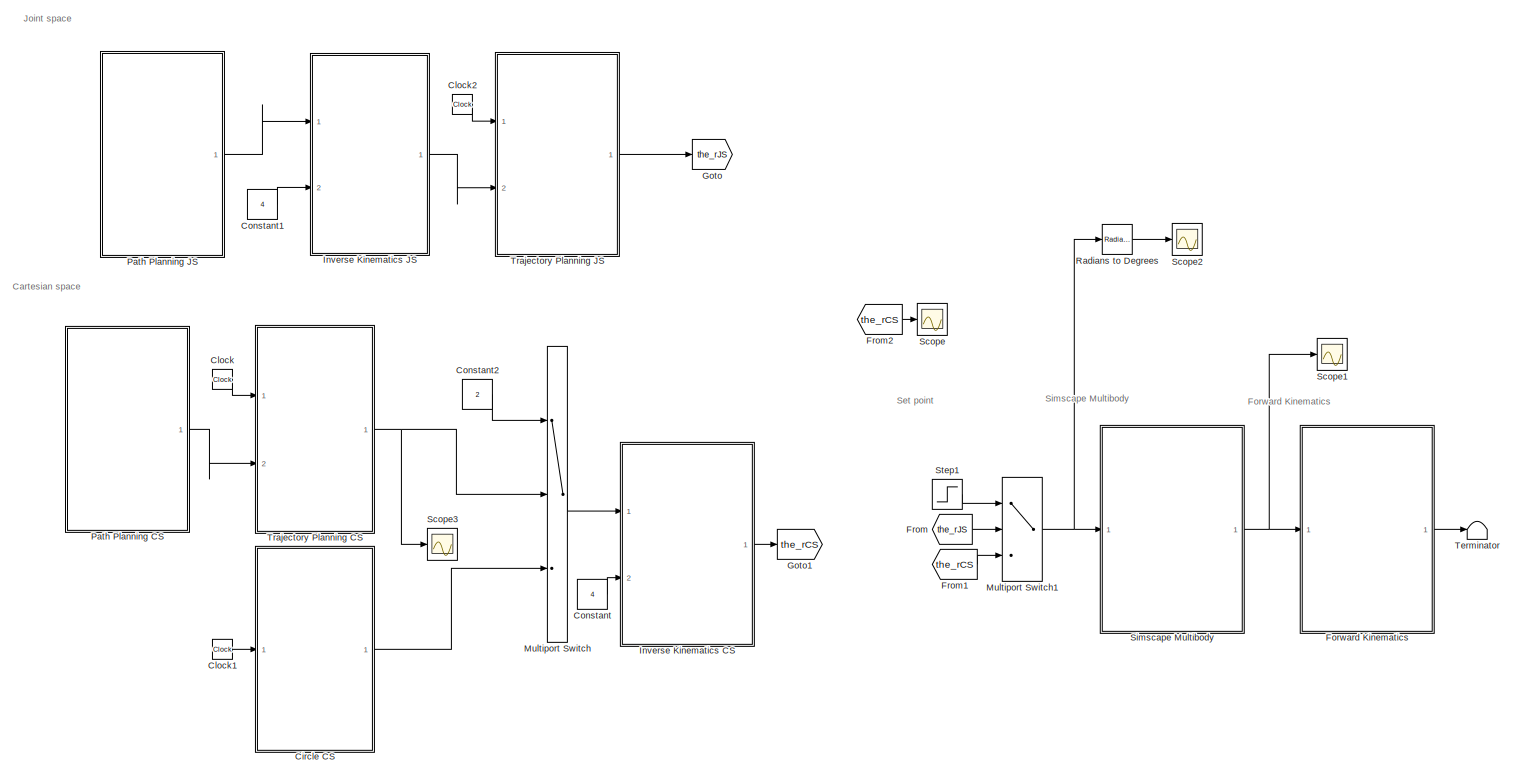
[diagram: root canvas - part 1/1, most of the canvas]
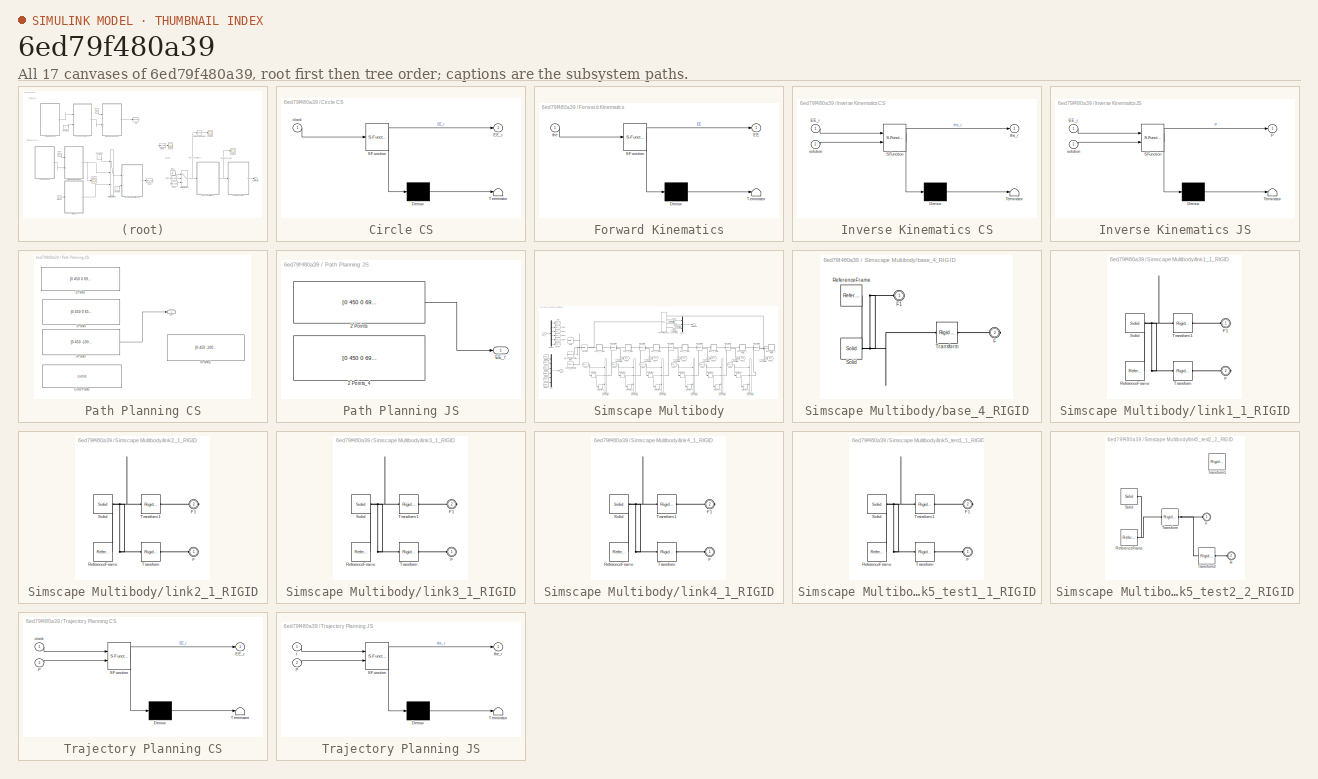
[diagram: thumbnail index - all 17 canvases of the model, root first then tree order]
MODEL slx_6ed79f480a39
KIND model
CONFIG AbsTol = auto
CONFIG EnableMultiTasking = off
CONFIG FixedStep = 0.01
CONFIG MaxStep = auto
CONFIG MinStep = auto
CONFIG RelTol = 1e-3
CONFIG SampleTimeConstraint = Unconstrained
CONFIG Solver = FixedStepAuto
CONFIG SolverName = FixedStepAuto
CONFIG StartTime = 0.0
CONFIG StopTime = 25
WORKSPACE source: external: MATLAB File  (data not in archive)
BLOCK [SubSystem] Circle CS
  ErrorFcn = Stateflow.Translate.translate
  PermitHierarchicalResolution = ExplicitOnly
  Ports = [1, 1]
  RequestExecContextInheritance = off
  SFBlockType = MATLAB Function
  TreatAsAtomicUnit = on
BLOCK [Demux] Circle CS/ Demux 
  Outputs = 1
  Ports = [1, 1]
BLOCK [S-Function] Circle CS/ SFunction 
  EnableBusSupport = on
  FunctionName = sf_sfun
  PortCounts = [1 2]
  Ports = [1, 2]
  SFcnIsStateOwnerBlock = off
  SFunctionDeploymentMode = off
  Tag = Stateflow S-Function CARTESIAN_SPACE 4
BLOCK [Terminator] Circle CS/ Terminator 
BLOCK [Outport] Circle CS/EE_r
  IconDisplay = Port number
BLOCK [Inport] Circle CS/clock
  IconDisplay = Port number
BLOCK [Clock] Clock
BLOCK [Clock] Clock1
BLOCK [Clock] Clock2
BLOCK [Constant] Constant
  Value = 4
BLOCK [Constant] Constant1
  Value = 4
BLOCK [Constant] Constant2
  Value = 2
BLOCK [SubSystem] Forward Kinematics
  ErrorFcn = Stateflow.Translate.translate
  PermitHierarchicalResolution = ExplicitOnly
  Ports = [1, 1]
  RequestExecContextInheritance = off
  SFBlockType = MATLAB Function
  TreatAsAtomicUnit = on
BLOCK [Demux] Forward Kinematics/ Demux 
  Outputs = 1
  Ports = [1, 1]
BLOCK [S-Function] Forward Kinematics/ SFunction 
  EnableBusSupport = on
  FunctionName = sf_sfun
  PortCounts = [1 2]
  Ports = [1, 2]
  SFcnIsStateOwnerBlock = off
  SFunctionDeploymentMode = off
  Tag = Stateflow S-Function CARTESIAN_SPACE 2
BLOCK [Terminator] Forward Kinematics/ Terminator 
BLOCK [Outport] Forward Kinematics/EE
  IconDisplay = Port number
BLOCK [Inport] Forward Kinematics/the
  IconDisplay = Port number
BLOCK [From] From
  GotoTag = the_rJS
BLOCK [From] From1
  GotoTag = the_rCS
BLOCK [From] From2
  GotoTag = the_rCS
BLOCK [Goto] Goto
  GotoTag = the_rJS
BLOCK [Goto] Goto1
  GotoTag = the_rCS
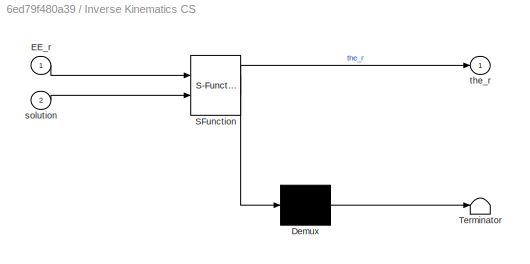
BLOCK [SubSystem] Inverse Kinematics CS
  ErrorFcn = Stateflow.Translate.translate
  PermitHierarchicalResolution = ExplicitOnly
  Ports = [2, 1]
  RequestExecContextInheritance = off
  SFBlockType = MATLAB Function
  TreatAsAtomicUnit = on
BLOCK [Demux] Inverse Kinematics CS/ Demux 
  Outputs = 1
  Ports = [1, 1]
BLOCK [S-Function] Inverse Kinematics CS/ SFunction 
  EnableBusSupport = on
  FunctionName = sf_sfun
  PortCounts = [2 2]
  Ports = [2, 2]
  SFcnIsStateOwnerBlock = off
  SFunctionDeploymentMode = off
  Tag = Stateflow S-Function CARTESIAN_SPACE 1
BLOCK [Terminator] Inverse Kinematics CS/ Terminator 
BLOCK [Inport] Inverse Kinematics CS/EE_r
  IconDisplay = Port number
BLOCK [Inport] Inverse Kinematics CS/solution
  IconDisplay = Port number
  Port = 2
BLOCK [Outport] Inverse Kinematics CS/the_r
  IconDisplay = Port number
BLOCK [SubSystem] Inverse Kinematics JS
  ErrorFcn = Stateflow.Translate.translate
  PermitHierarchicalResolution = ExplicitOnly
  Ports = [2, 1]
  RequestExecContextInheritance = off
  SFBlockType = MATLAB Function
  TreatAsAtomicUnit = on
BLOCK [Demux] Inverse Kinematics JS/ Demux 
  Outputs = 1
  Ports = [1, 1]
BLOCK [S-Function] Inverse Kinematics JS/ SFunction 
  EnableBusSupport = on
  FunctionName = sf_sfun
  PortCounts = [2 2]
  Ports = [2, 2]
  SFcnIsStateOwnerBlock = off
  SFunctionDeploymentMode = off
  Tag = Stateflow S-Function CARTESIAN_SPACE 7
BLOCK [Terminator] Inverse Kinematics JS/ Terminator 
BLOCK [Inport] Inverse Kinematics JS/EE_r
  IconDisplay = Port number
BLOCK [Outport] Inverse Kinematics JS/P
  IconDisplay = Port number
BLOCK [Inport] Inverse Kinematics JS/solution
  IconDisplay = Port number
  Port = 2
BLOCK [MultiPortSwitch] Multiport Switch
  InputSameDT = off
  Inputs = 2
  Ports = [3, 1]
  SaturateOnIntegerOverflow = off
BLOCK [MultiPortSwitch] Multiport Switch1
  InputSameDT = off
  Inputs = 2
  Ports = [3, 1]
  SaturateOnIntegerOverflow = off
BLOCK [SubSystem] Path Planning CS
  Ports = [0, 1]
  RequestExecContextInheritance = off
BLOCK [Constant] Path Planning CS/2 Points
  Commented = on
  Value = [0 450 0 695 0 -pi/2 pi; 5 450 0 650 0 -pi/2 pi]
BLOCK [Constant] Path Planning CS/3 Points
  Commented = on
  Value = [0 450 0 650 0 -pi/2 pi;0+5 450 0 650 0 -pi/2 pi; 5+5 450 -100 550 0 -pi/2 pi; 10+5 450 100 550 0 -pi/2 pi; 15+5 450 0 650 0 -pi/2 pi]
BLOCK [Constant] Path Planning CS/4 Points
  Value = [0 450 -100 650 0 -pi/2 pi;0+5 450 -100 650 0 -pi/2 pi; 5+5 450 100 650 0 -pi/2 pi; 10+5 450 100 550 0 -pi/2 pi; 15+5 450 -100 550 0 -pi/2 pi;20+5 450 -100 650 0 -pi/2 pi]
BLOCK [Constant] Path Planning CS/4 Points1
  Commented = on
  Value = [0 450 -100 650 0 0 0; 10/4 450 100 650 0 0 0; 20/4 450 100 500 0 0 0; 30/4 450 -100 500 0 0 0;40/4 450 -100 650 0 0 0]
BLOCK [Constant] Path Planning CS/Circle Points
  Commented = on
  Value = circle
BLOCK [Outport] Path Planning CS/P
  IconDisplay = Port number
BLOCK [SubSystem] Path Planning JS
  Ports = [0, 1]
  RequestExecContextInheritance = off
BLOCK [Constant] Path Planning JS/2 Points
  Value = [0 450 0 695 0 -pi/2 0; 5 450 0 650 0 -pi/2 pi]
BLOCK [Constant] Path Planning JS/2 Points_4
  Commented = on
  Value = [0 450 0 695 0 -pi/2 0; 5 450 -100 650 0 -pi/2 pi]
BLOCK [Outport] Path Planning JS/EE_r
  IconDisplay = Port number
BLOCK [Reference] Radians to Degrees  REF=simulink_extras/Transformations/Radians
to Degrees
  Ports = [1, 1]
  SourceBlock = simulink_extras/Transformations/Radians\nto Degrees
  SourceProductBaseCode = SL
  SourceProductName = Simulink
  SourceType = RadiansToDegrees
BLOCK [Scope] Scope
  Floating = off
  NumInputPorts = 1
  Ports = [1]
  ScopeSpecificationString = Simulink.scopes.TimeScopeBlockCfg('CurrentConfiguration', extmgr.ConfigurationSet(extmgr.Configuration('Core','General UI',true),extmgr.Configuration('Core','Source UI',true),extmgr.Configuration('Sources','WiredSimulink',true,'DataLoggingVariableName','ScopeData2'),extmgr.Configuration('Visuals','Time Domain',true,'SerializedDisplays',{struct('MinYLimReal','-1.00897','MaxYLimReal','0.90679','YLab...<+1458ch>
BLOCK [Scope] Scope1
  Floating = off
  NumInputPorts = 1
  Ports = [1]
  ScopeSpecificationString = Simulink.scopes.TimeScopeBlockCfg('CurrentConfiguration', extmgr.ConfigurationSet(extmgr.Configuration('Core','General UI',true),extmgr.Configuration('Core','Source UI',true),extmgr.Configuration('Sources','WiredSimulink',true,'DataLoggingVariableName','ScopeData1'),extmgr.Configuration('Visuals','Time Domain',true,'SerializedDisplays',{struct('MinYLimReal','-1.00897','MaxYLimReal','0.90679','YLab...<+1542ch>
BLOCK [Scope] Scope2
  Floating = off
  NumInputPorts = 1
  Ports = [1]
  ScopeSpecificationString = Simulink.scopes.TimeScopeBlockCfg('CurrentConfiguration', extmgr.ConfigurationSet(extmgr.Configuration('Core','General UI',true),extmgr.Configuration('Core','Source UI',true),extmgr.Configuration('Sources','WiredSimulink',true,'DataLoggingVariableName','the','DataLogging',true,'DataLoggingSaveFormat','StructureWithTime'),extmgr.Configuration('Visuals','Time Domain',true,'SerializedDisplays',{struc...<+1583ch>
BLOCK [Scope] Scope3
  Floating = off
  NumInputPorts = 1
  Ports = [1]
  ScopeSpecificationString = Simulink.scopes.TimeScopeBlockCfg('CurrentConfiguration', extmgr.ConfigurationSet(extmgr.Configuration('Core','General UI',true),extmgr.Configuration('Core','Source UI',true),extmgr.Configuration('Sources','WiredSimulink',true,'DataLoggingVariableName','ScopeData3'),extmgr.Configuration('Visuals','Time Domain',true,'SerializedDisplays',{struct('MinYLimReal','-193.75','MaxYLimReal','743.75','YLabel...<+1544ch>
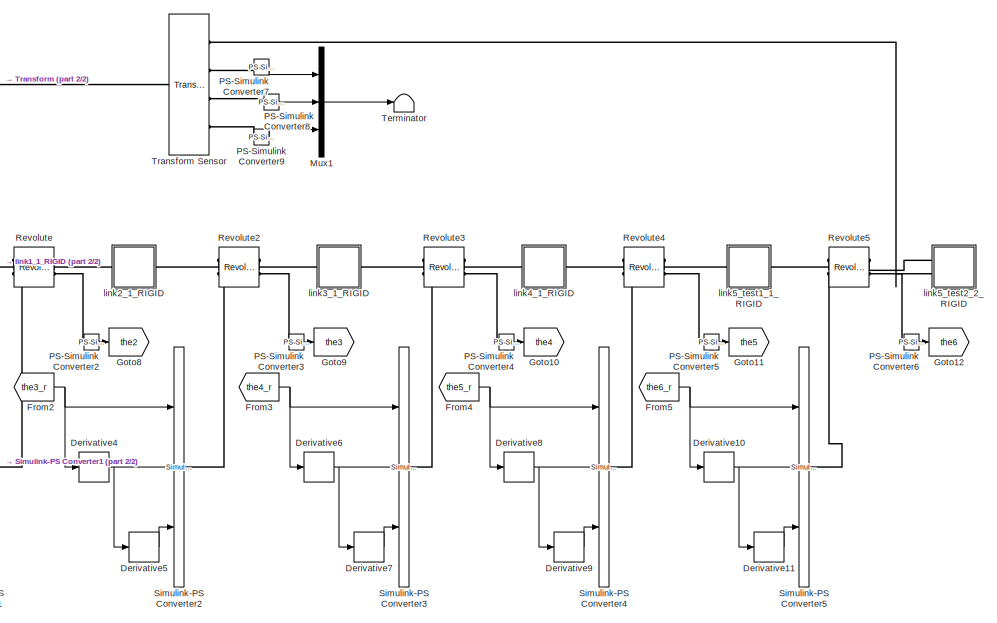
[diagram: Simscape Multibody - part 1/2, right side, full height]
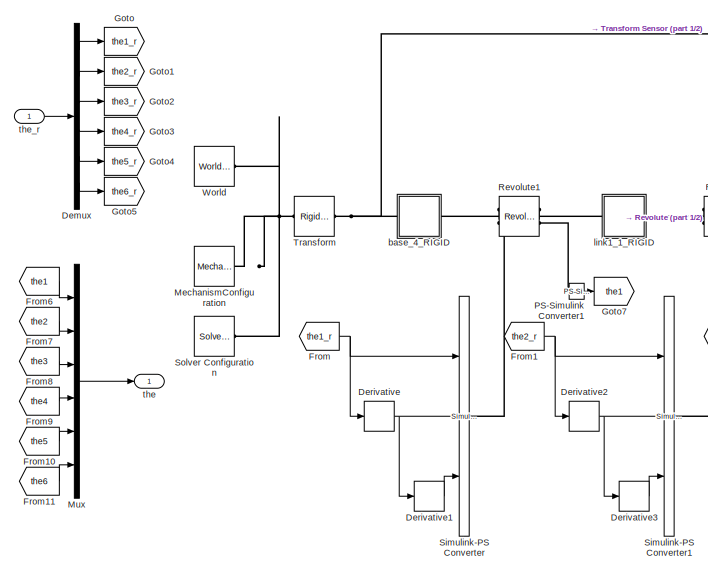
[diagram: Simscape Multibody - part 2/2, left side, full height]
BLOCK [SubSystem] Simscape Multibody
  Ports = [1, 1]
  RequestExecContextInheritance = off
BLOCK [Demux] Simscape Multibody/Demux
  DisplayOption = bar
  Outputs = 6
  Ports = [1, 6]
BLOCK [Derivative] Simscape Multibody/Derivative
BLOCK [Derivative] Simscape Multibody/Derivative1
BLOCK [Derivative] Simscape Multibody/Derivative10
BLOCK [Derivative] Simscape Multibody/Derivative11
BLOCK [Derivative] Simscape Multibody/Derivative2
BLOCK [Derivative] Simscape Multibody/Derivative3
BLOCK [Derivative] Simscape Multibody/Derivative4
BLOCK [Derivative] Simscape Multibody/Derivative5
BLOCK [Derivative] Simscape Multibody/Derivative6
BLOCK [Derivative] Simscape Multibody/Derivative7
BLOCK [Derivative] Simscape Multibody/Derivative8
BLOCK [Derivative] Simscape Multibody/Derivative9
BLOCK [From] Simscape Multibody/From
  GotoTag = the1_r
BLOCK [From] Simscape Multibody/From1
  GotoTag = the2_r
BLOCK [From] Simscape Multibody/From10
  GotoTag = the5
BLOCK [From] Simscape Multibody/From11
  GotoTag = the6
BLOCK [From] Simscape Multibody/From2
  GotoTag = the3_r
BLOCK [From] Simscape Multibody/From3
  GotoTag = the4_r
BLOCK [From] Simscape Multibody/From4
  GotoTag = the5_r
BLOCK [From] Simscape Multibody/From5
  GotoTag = the6_r
BLOCK [From] Simscape Multibody/From6
  GotoTag = the1
BLOCK [From] Simscape Multibody/From7
  GotoTag = the2
BLOCK [From] Simscape Multibody/From8
  GotoTag = the3
BLOCK [From] Simscape Multibody/From9
  GotoTag = the4
BLOCK [Goto] Simscape Multibody/Goto
  GotoTag = the1_r
BLOCK [Goto] Simscape Multibody/Goto1
  GotoTag = the2_r
BLOCK [Goto] Simscape Multibody/Goto10
  GotoTag = the4
BLOCK [Goto] Simscape Multibody/Goto11
  GotoTag = the5
BLOCK [Goto] Simscape Multibody/Goto12
  GotoTag = the6
BLOCK [Goto] Simscape Multibody/Goto2
  GotoTag = the3_r
BLOCK [Goto] Simscape Multibody/Goto3
  GotoTag = the4_r
BLOCK [Goto] Simscape Multibody/Goto4
  GotoTag = the5_r
BLOCK [Goto] Simscape Multibody/Goto5
  GotoTag = the6_r
BLOCK [Goto] Simscape Multibody/Goto7
  GotoTag = the1
BLOCK [Goto] Simscape Multibody/Goto8
  GotoTag = the2
BLOCK [Goto] Simscape Multibody/Goto9
  GotoTag = the3
BLOCK [Reference] Simscape Multibody/MechanismConfiguration  REF=sm_lib/Utilities/Mechanism
Configuration
  Ports = [0, 0, 0, 0, 0, 0, 1]
  SourceBlock = sm_lib/Utilities/Mechanism\nConfiguration
  SourceProductBaseCode = MS
  SourceProductName = Simscape Multibody
  SourceType = Mechanism\nConfiguration
BLOCK [Mux] Simscape Multibody/Mux
  DisplayOption = bar
  Inputs = 6
  Ports = [6, 1]
BLOCK [Mux] Simscape Multibody/Mux1
  DisplayOption = bar
  Inputs = 3
  Ports = [3, 1]
BLOCK [Reference] Simscape Multibody/PS-Simulink Converter1  REF=nesl_utility/PS-Simulink
Converter
  Ports = [0, 1, 0, 0, 0, 1]
  SourceBlock = nesl_utility/PS-Simulink\nConverter
  SourceProductBaseCode = SS
  SourceProductName = Simscape
  SourceType = PS-Simulink\nConverter
BLOCK [Reference] Simscape Multibody/PS-Simulink Converter2  REF=nesl_utility/PS-Simulink
Converter
  Ports = [0, 1, 0, 0, 0, 1]
  SourceBlock = nesl_utility/PS-Simulink\nConverter
  SourceProductBaseCode = SS
  SourceProductName = Simscape
  SourceType = PS-Simulink\nConverter
BLOCK [Reference] Simscape Multibody/PS-Simulink Converter3  REF=nesl_utility/PS-Simulink
Converter
  Ports = [0, 1, 0, 0, 0, 1]
  SourceBlock = nesl_utility/PS-Simulink\nConverter
  SourceProductBaseCode = SS
  SourceProductName = Simscape
  SourceType = PS-Simulink\nConverter
BLOCK [Reference] Simscape Multibody/PS-Simulink Converter4  REF=nesl_utility/PS-Simulink
Converter
  Ports = [0, 1, 0, 0, 0, 1]
  SourceBlock = nesl_utility/PS-Simulink\nConverter
  SourceProductBaseCode = SS
  SourceProductName = Simscape
  SourceType = PS-Simulink\nConverter
BLOCK [Reference] Simscape Multibody/PS-Simulink Converter5  REF=nesl_utility/PS-Simulink
Converter
  Ports = [0, 1, 0, 0, 0, 1]
  SourceBlock = nesl_utility/PS-Simulink\nConverter
  SourceProductBaseCode = SS
  SourceProductName = Simscape
  SourceType = PS-Simulink\nConverter
BLOCK [Reference] Simscape Multibody/PS-Simulink Converter6  REF=nesl_utility/PS-Simulink
Converter
  Ports = [0, 1, 0, 0, 0, 1]
  SourceBlock = nesl_utility/PS-Simulink\nConverter
  SourceProductBaseCode = SS
  SourceProductName = Simscape
  SourceType = PS-Simulink\nConverter
BLOCK [Reference] Simscape Multibody/PS-Simulink Converter7  REF=nesl_utility/PS-Simulink
Converter
  Ports = [0, 1, 0, 0, 0, 1]
  SourceBlock = nesl_utility/PS-Simulink\nConverter
  SourceProductBaseCode = SS
  SourceProductName = Simscape
  SourceType = PS-Simulink\nConverter
BLOCK [Reference] Simscape Multibody/PS-Simulink Converter8  REF=nesl_utility/PS-Simulink
Converter
  Ports = [0, 1, 0, 0, 0, 1]
  SourceBlock = nesl_utility/PS-Simulink\nConverter
  SourceProductBaseCode = SS
  SourceProductName = Simscape
  SourceType = PS-Simulink\nConverter
BLOCK [Reference] Simscape Multibody/PS-Simulink Converter9  REF=nesl_utility/PS-Simulink
Converter
  Ports = [0, 1, 0, 0, 0, 1]
  SourceBlock = nesl_utility/PS-Simulink\nConverter
  SourceProductBaseCode = SS
  SourceProductName = Simscape
  SourceType = PS-Simulink\nConverter
BLOCK [Reference] Simscape Multibody/Revolute  REF=sm_lib/Joints/Revolute Joint
  Ports = [0, 0, 0, 0, 0, 2, 2]
  SourceBlock = sm_lib/Joints/Revolute Joint
  SourceProductBaseCode = MS
  SourceProductName = Simscape Multibody
  SourceType = Revolute Joint
BLOCK [Reference] Simscape Multibody/Revolute1  REF=sm_lib/Joints/Revolute Joint
  Ports = [0, 0, 0, 0, 0, 2, 2]
  SourceBlock = sm_lib/Joints/Revolute Joint
  SourceProductBaseCode = MS
  SourceProductName = Simscape Multibody
  SourceType = Revolute Joint
BLOCK [Reference] Simscape Multibody/Revolute2  REF=sm_lib/Joints/Revolute Joint
  Ports = [0, 0, 0, 0, 0, 2, 2]
  SourceBlock = sm_lib/Joints/Revolute Joint
  SourceProductBaseCode = MS
  SourceProductName = Simscape Multibody
  SourceType = Revolute Joint
BLOCK [Reference] Simscape Multibody/Revolute3  REF=sm_lib/Joints/Revolute Joint
  Ports = [0, 0, 0, 0, 0, 2, 2]
  SourceBlock = sm_lib/Joints/Revolute Joint
  SourceProductBaseCode = MS
  SourceProductName = Simscape Multibody
  SourceType = Revolute Joint
BLOCK [Reference] Simscape Multibody/Revolute4  REF=sm_lib/Joints/Revolute Joint
  Ports = [0, 0, 0, 0, 0, 2, 2]
  SourceBlock = sm_lib/Joints/Revolute Joint
  SourceProductBaseCode = MS
  SourceProductName = Simscape Multibody
  SourceType = Revolute Joint
BLOCK [Reference] Simscape Multibody/Revolute5  REF=sm_lib/Joints/Revolute Joint
  Ports = [0, 0, 0, 0, 0, 2, 2]
  SourceBlock = sm_lib/Joints/Revolute Joint
  SourceProductBaseCode = MS
  SourceProductName = Simscape Multibody
  SourceType = Revolute Joint
BLOCK [Reference] Simscape Multibody/Simulink-PS Converter  REF=nesl_utility/Simulink-PS
Converter
  Ports = [3, 0, 0, 0, 0, 0, 1]
  SourceBlock = nesl_utility/Simulink-PS\nConverter
  SourceProductBaseCode = SS
  SourceProductName = Simscape
  SourceType = Simulink-PS\nConverter
BLOCK [Reference] Simscape Multibody/Simulink-PS Converter1  REF=nesl_utility/Simulink-PS
Converter
  Ports = [3, 0, 0, 0, 0, 0, 1]
  SourceBlock = nesl_utility/Simulink-PS\nConverter
  SourceProductBaseCode = SS
  SourceProductName = Simscape
  SourceType = Simulink-PS\nConverter
BLOCK [Reference] Simscape Multibody/Simulink-PS Converter2  REF=nesl_utility/Simulink-PS
Converter
  Ports = [3, 0, 0, 0, 0, 0, 1]
  SourceBlock = nesl_utility/Simulink-PS\nConverter
  SourceProductBaseCode = SS
  SourceProductName = Simscape
  SourceType = Simulink-PS\nConverter
BLOCK [Reference] Simscape Multibody/Simulink-PS Converter3  REF=nesl_utility/Simulink-PS
Converter
  Ports = [3, 0, 0, 0, 0, 0, 1]
  SourceBlock = nesl_utility/Simulink-PS\nConverter
  SourceProductBaseCode = SS
  SourceProductName = Simscape
  SourceType = Simulink-PS\nConverter
BLOCK [Reference] Simscape Multibody/Simulink-PS Converter4  REF=nesl_utility/Simulink-PS
Converter
  Ports = [3, 0, 0, 0, 0, 0, 1]
  SourceBlock = nesl_utility/Simulink-PS\nConverter
  SourceProductBaseCode = SS
  SourceProductName = Simscape
  SourceType = Simulink-PS\nConverter
BLOCK [Reference] Simscape Multibody/Simulink-PS Converter5  REF=nesl_utility/Simulink-PS
Converter
  Ports = [3, 0, 0, 0, 0, 0, 1]
  SourceBlock = nesl_utility/Simulink-PS\nConverter
  SourceProductBaseCode = SS
  SourceProductName = Simscape
  SourceType = Simulink-PS\nConverter
BLOCK [Reference] Simscape Multibody/Solver Configuration  REF=nesl_utility/Solver
Configuration
  Ports = [0, 0, 0, 0, 0, 0, 1]
  SourceBlock = nesl_utility/Solver\nConfiguration
  SourceProductBaseCode = SS
  SourceProductName = Simscape
  SourceType = Solver\nConfiguration
BLOCK [Terminator] Simscape Multibody/Terminator
BLOCK [Reference] Simscape Multibody/Transform  REF=sm_lib/Frames and
Transforms/Rigid
Transform
  Ports = [0, 0, 0, 0, 0, 1, 1]
  SourceBlock = sm_lib/Frames and\nTransforms/Rigid\nTransform
  SourceProductBaseCode = MS
  SourceProductName = Simscape Multibody
  SourceType = Rigid\nTransform
BLOCK [Reference] Simscape Multibody/Transform Sensor  REF=sm_lib/Frames and
Transforms/Transform
Sensor
  Ports = [0, 0, 0, 0, 0, 1, 4]
  SourceBlock = sm_lib/Frames and\nTransforms/Transform\nSensor
  SourceProductBaseCode = MS
  SourceProductName = Simscape Multibody
  SourceType = Transform\nSensor
BLOCK [Reference] Simscape Multibody/World  REF=sm_lib/Frames and
Transforms/World Frame
  Ports = [0, 0, 0, 0, 0, 0, 1]
  SourceBlock = sm_lib/Frames and\nTransforms/World Frame
  SourceProductBaseCode = MS
  SourceProductName = Simscape Multibody
  SourceType = World Frame
BLOCK [SubSystem] Simscape Multibody/base_4_RIGID
  Ports = [0, 0, 0, 0, 0, 1, 1]
  RequestExecContextInheritance = off
BLOCK [PMIOPort] Simscape Multibody/base_4_RIGID/F
  Port = 2
  Side = Right
BLOCK [PMIOPort] Simscape Multibody/base_4_RIGID/F1
  Side = Left
BLOCK [Reference] Simscape Multibody/base_4_RIGID/ReferenceFrame  REF=sm_lib/Frames and
Transforms/Reference
Frame
  Ports = [0, 0, 0, 0, 0, 0, 1]
  SourceBlock = sm_lib/Frames and\nTransforms/Reference\nFrame
  SourceProductBaseCode = MS
  SourceProductName = Simscape Multibody
  SourceType = Reference\nFrame
BLOCK [Reference] Simscape Multibody/base_4_RIGID/Solid  REF=sm_lib/Body Elements/Solid
  Ports = [0, 0, 0, 0, 0, 0, 1]
  SourceBlock = sm_lib/Body Elements/Solid
  SourceProductBaseCode = MS
  SourceProductName = Simscape Multibody
  SourceType = Solid
BLOCK [Reference] Simscape Multibody/base_4_RIGID/Transform  REF=sm_lib/Frames and
Transforms/Rigid
Transform
  Ports = [0, 0, 0, 0, 0, 1, 1]
  SourceBlock = sm_lib/Frames and\nTransforms/Rigid\nTransform
  SourceProductBaseCode = MS
  SourceProductName = Simscape Multibody
  SourceType = Rigid\nTransform
BLOCK [SubSystem] Simscape Multibody/link1_1_RIGID
  Ports = [0, 0, 0, 0, 0, 1, 1]
  RequestExecContextInheritance = off
BLOCK [PMIOPort] Simscape Multibody/link1_1_RIGID/F
  Port = 2
  Side = Right
BLOCK [PMIOPort] Simscape Multibody/link1_1_RIGID/F1
  Side = Left
BLOCK [Reference] Simscape Multibody/link1_1_RIGID/ReferenceFrame  REF=sm_lib/Frames and
Transforms/Reference
Frame
  Ports = [0, 0, 0, 0, 0, 0, 1]
  SourceBlock = sm_lib/Frames and\nTransforms/Reference\nFrame
  SourceProductBaseCode = MS
  SourceProductName = Simscape Multibody
  SourceType = Reference\nFrame
BLOCK [Reference] Simscape Multibody/link1_1_RIGID/Solid  REF=sm_lib/Body Elements/Solid
  Ports = [0, 0, 0, 0, 0, 0, 1]
  SourceBlock = sm_lib/Body Elements/Solid
  SourceProductBaseCode = MS
  SourceProductName = Simscape Multibody
  SourceType = Solid
BLOCK [Reference] Simscape Multibody/link1_1_RIGID/Transform  REF=sm_lib/Frames and
Transforms/Rigid
Transform
  Ports = [0, 0, 0, 0, 0, 1, 1]
  SourceBlock = sm_lib/Frames and\nTransforms/Rigid\nTransform
  SourceProductBaseCode = MS
  SourceProductName = Simscape Multibody
  SourceType = Rigid\nTransform
BLOCK [Reference] Simscape Multibody/link1_1_RIGID/Transform1  REF=sm_lib/Frames and
Transforms/Rigid
Transform
  Ports = [0, 0, 0, 0, 0, 1, 1]
  SourceBlock = sm_lib/Frames and\nTransforms/Rigid\nTransform
  SourceProductBaseCode = MS
  SourceProductName = Simscape Multibody
  SourceType = Rigid\nTransform
BLOCK [SubSystem] Simscape Multibody/link2_1_RIGID
  Ports = [0, 0, 0, 0, 0, 1, 1]
  RequestExecContextInheritance = off
BLOCK [PMIOPort] Simscape Multibody/link2_1_RIGID/F
  Side = Left
BLOCK [PMIOPort] Simscape Multibody/link2_1_RIGID/F1
  Port = 2
  Side = Right
BLOCK [Reference] Simscape Multibody/link2_1_RIGID/ReferenceFrame  REF=sm_lib/Frames and
Transforms/Reference
Frame
  Ports = [0, 0, 0, 0, 0, 0, 1]
  SourceBlock = sm_lib/Frames and\nTransforms/Reference\nFrame
  SourceProductBaseCode = MS
  SourceProductName = Simscape Multibody
  SourceType = Reference\nFrame
BLOCK [Reference] Simscape Multibody/link2_1_RIGID/Solid  REF=sm_lib/Body Elements/Solid
  Ports = [0, 0, 0, 0, 0, 0, 1]
  SourceBlock = sm_lib/Body Elements/Solid
  SourceProductBaseCode = MS
  SourceProductName = Simscape Multibody
  SourceType = Solid
BLOCK [Reference] Simscape Multibody/link2_1_RIGID/Transform  REF=sm_lib/Frames and
Transforms/Rigid
Transform
  Ports = [0, 0, 0, 0, 0, 1, 1]
  SourceBlock = sm_lib/Frames and\nTransforms/Rigid\nTransform
  SourceProductBaseCode = MS
  SourceProductName = Simscape Multibody
  SourceType = Rigid\nTransform
BLOCK [Reference] Simscape Multibody/link2_1_RIGID/Transform1  REF=sm_lib/Frames and
Transforms/Rigid
Transform
  Ports = [0, 0, 0, 0, 0, 1, 1]
  SourceBlock = sm_lib/Frames and\nTransforms/Rigid\nTransform
  SourceProductBaseCode = MS
  SourceProductName = Simscape Multibody
  SourceType = Rigid\nTransform
BLOCK [SubSystem] Simscape Multibody/link3_1_RIGID
  Ports = [0, 0, 0, 0, 0, 1, 1]
  RequestExecContextInheritance = off
BLOCK [PMIOPort] Simscape Multibody/link3_1_RIGID/F
  Side = Left
BLOCK [PMIOPort] Simscape Multibody/link3_1_RIGID/F1
  Port = 2
  Side = Right
BLOCK [Reference] Simscape Multibody/link3_1_RIGID/ReferenceFrame  REF=sm_lib/Frames and
Transforms/Reference
Frame
  Ports = [0, 0, 0, 0, 0, 0, 1]
  SourceBlock = sm_lib/Frames and\nTransforms/Reference\nFrame
  SourceProductBaseCode = MS
  SourceProductName = Simscape Multibody
  SourceType = Reference\nFrame
BLOCK [Reference] Simscape Multibody/link3_1_RIGID/Solid  REF=sm_lib/Body Elements/Solid
  Ports = [0, 0, 0, 0, 0, 0, 1]
  SourceBlock = sm_lib/Body Elements/Solid
  SourceProductBaseCode = MS
  SourceProductName = Simscape Multibody
  SourceType = Solid
BLOCK [Reference] Simscape Multibody/link3_1_RIGID/Transform  REF=sm_lib/Frames and
Transforms/Rigid
Transform
  Ports = [0, 0, 0, 0, 0, 1, 1]
  SourceBlock = sm_lib/Frames and\nTransforms/Rigid\nTransform
  SourceProductBaseCode = MS
  SourceProductName = Simscape Multibody
  SourceType = Rigid\nTransform
BLOCK [Reference] Simscape Multibody/link3_1_RIGID/Transform1  REF=sm_lib/Frames and
Transforms/Rigid
Transform
  Ports = [0, 0, 0, 0, 0, 1, 1]
  SourceBlock = sm_lib/Frames and\nTransforms/Rigid\nTransform
  SourceProductBaseCode = MS
  SourceProductName = Simscape Multibody
  SourceType = Rigid\nTransform
BLOCK [SubSystem] Simscape Multibody/link4_1_RIGID
  Ports = [0, 0, 0, 0, 0, 1, 1]
  RequestExecContextInheritance = off
BLOCK [PMIOPort] Simscape Multibody/link4_1_RIGID/F
  Side = Left
BLOCK [PMIOPort] Simscape Multibody/link4_1_RIGID/F1
  Port = 2
  Side = Right
BLOCK [Reference] Simscape Multibody/link4_1_RIGID/ReferenceFrame  REF=sm_lib/Frames and
Transforms/Reference
Frame
  Ports = [0, 0, 0, 0, 0, 0, 1]
  SourceBlock = sm_lib/Frames and\nTransforms/Reference\nFrame
  SourceProductBaseCode = MS
  SourceProductName = Simscape Multibody
  SourceType = Reference\nFrame
BLOCK [Reference] Simscape Multibody/link4_1_RIGID/Solid  REF=sm_lib/Body Elements/Solid
  Ports = [0, 0, 0, 0, 0, 0, 1]
  SourceBlock = sm_lib/Body Elements/Solid
  SourceProductBaseCode = MS
  SourceProductName = Simscape Multibody
  SourceType = Solid
BLOCK [Reference] Simscape Multibody/link4_1_RIGID/Transform  REF=sm_lib/Frames and
Transforms/Rigid
Transform
  Ports = [0, 0, 0, 0, 0, 1, 1]
  SourceBlock = sm_lib/Frames and\nTransforms/Rigid\nTransform
  SourceProductBaseCode = MS
  SourceProductName = Simscape Multibody
  SourceType = Rigid\nTransform
BLOCK [Reference] Simscape Multibody/link4_1_RIGID/Transform1  REF=sm_lib/Frames and
Transforms/Rigid
Transform
  Ports = [0, 0, 0, 0, 0, 1, 1]
  SourceBlock = sm_lib/Frames and\nTransforms/Rigid\nTransform
  SourceProductBaseCode = MS
  SourceProductName = Simscape Multibody
  SourceType = Rigid\nTransform
BLOCK [SubSystem] Simscape Multibody/link5_test1_1_RIGID
  Ports = [0, 0, 0, 0, 0, 1, 1]
  RequestExecContextInheritance = off
BLOCK [PMIOPort] Simscape Multibody/link5_test1_1_RIGID/F
  Side = Left
BLOCK [PMIOPort] Simscape Multibody/link5_test1_1_RIGID/F1
  Port = 2
  Side = Right
BLOCK [Reference] Simscape Multibody/link5_test1_1_RIGID/ReferenceFrame  REF=sm_lib/Frames and
Transforms/Reference
Frame
  Ports = [0, 0, 0, 0, 0, 0, 1]
  SourceBlock = sm_lib/Frames and\nTransforms/Reference\nFrame
  SourceProductBaseCode = MS
  SourceProductName = Simscape Multibody
  SourceType = Reference\nFrame
BLOCK [Reference] Simscape Multibody/link5_test1_1_RIGID/Solid  REF=sm_lib/Body Elements/Solid
  Ports = [0, 0, 0, 0, 0, 0, 1]
  SourceBlock = sm_lib/Body Elements/Solid
  SourceProductBaseCode = MS
  SourceProductName = Simscape Multibody
  SourceType = Solid
BLOCK [Reference] Simscape Multibody/link5_test1_1_RIGID/Transform  REF=sm_lib/Frames and
Transforms/Rigid
Transform
  Ports = [0, 0, 0, 0, 0, 1, 1]
  SourceBlock = sm_lib/Frames and\nTransforms/Rigid\nTransform
  SourceProductBaseCode = MS
  SourceProductName = Simscape Multibody
  SourceType = Rigid\nTransform
BLOCK [Reference] Simscape Multibody/link5_test1_1_RIGID/Transform1  REF=sm_lib/Frames and
Transforms/Rigid
Transform
  Ports = [0, 0, 0, 0, 0, 1, 1]
  SourceBlock = sm_lib/Frames and\nTransforms/Rigid\nTransform
  SourceProductBaseCode = MS
  SourceProductName = Simscape Multibody
  SourceType = Rigid\nTransform
BLOCK [SubSystem] Simscape Multibody/link5_test2_2_RIGID
  Ports = [0, 0, 0, 0, 0, 2]
  RequestExecContextInheritance = off
BLOCK [PMIOPort] Simscape Multibody/link5_test2_2_RIGID/F
  Side = Left
BLOCK [PMIOPort] Simscape Multibody/link5_test2_2_RIGID/R
  Port = 2
  Side = Left
BLOCK [Reference] Simscape Multibody/link5_test2_2_RIGID/ReferenceFrame  REF=sm_lib/Frames and
Transforms/Reference
Frame
  Ports = [0, 0, 0, 0, 0, 0, 1]
  SourceBlock = sm_lib/Frames and\nTransforms/Reference\nFrame
  SourceProductBaseCode = MS
  SourceProductName = Simscape Multibody
  SourceType = Reference\nFrame
BLOCK [Reference] Simscape Multibody/link5_test2_2_RIGID/Solid  REF=sm_lib/Body Elements/Solid
  Ports = [0, 0, 0, 0, 0, 0, 1]
  SourceBlock = sm_lib/Body Elements/Solid
  SourceProductBaseCode = MS
  SourceProductName = Simscape Multibody
  SourceType = Solid
BLOCK [Reference] Simscape Multibody/link5_test2_2_RIGID/Transform  REF=sm_lib/Frames and
Transforms/Rigid
Transform
  Ports = [0, 0, 0, 0, 0, 1, 1]
  SourceBlock = sm_lib/Frames and\nTransforms/Rigid\nTransform
  SourceProductBaseCode = MS
  SourceProductName = Simscape Multibody
  SourceType = Rigid\nTransform
BLOCK [Reference] Simscape Multibody/link5_test2_2_RIGID/Transform1  REF=sm_lib/Frames and
Transforms/Rigid
Transform
  Commented = on
  Ports = [0, 0, 0, 0, 0, 1, 1]
  SourceBlock = sm_lib/Frames and\nTransforms/Rigid\nTransform
  SourceProductBaseCode = MS
  SourceProductName = Simscape Multibody
  SourceType = Rigid\nTransform
BLOCK [Reference] Simscape Multibody/link5_test2_2_RIGID/Transform2  REF=sm_lib/Frames and
Transforms/Rigid
Transform
  Ports = [0, 0, 0, 0, 0, 1, 1]
  SourceBlock = sm_lib/Frames and\nTransforms/Rigid\nTransform
  SourceProductBaseCode = MS
  SourceProductName = Simscape Multibody
  SourceType = Rigid\nTransform
BLOCK [Outport] Simscape Multibody/the
  IconDisplay = Port number
BLOCK [Inport] Simscape Multibody/the_r
  IconDisplay = Port number
BLOCK [Step] Step1
  After = 2
  Before = 1
  SampleTime = 0
  Time = 5
BLOCK [Terminator] Terminator
BLOCK [SubSystem] Trajectory Planning CS
  ErrorFcn = Stateflow.Translate.translate
  PermitHierarchicalResolution = ExplicitOnly
  Ports = [2, 1]
  RequestExecContextInheritance = off
  SFBlockType = MATLAB Function
  TreatAsAtomicUnit = on
BLOCK [Demux] Trajectory Planning CS/ Demux 
  Outputs = 1
  Ports = [1, 1]
BLOCK [S-Function] Trajectory Planning CS/ SFunction 
  EnableBusSupport = on
  FunctionName = sf_sfun
  PortCounts = [2 2]
  Ports = [2, 2]
  SFcnIsStateOwnerBlock = off
  SFunctionDeploymentMode = off
  Tag = Stateflow S-Function CARTESIAN_SPACE 5
BLOCK [Terminator] Trajectory Planning CS/ Terminator 
BLOCK [Outport] Trajectory Planning CS/EE_r
  IconDisplay = Port number
BLOCK [Inport] Trajectory Planning CS/P
  IconDisplay = Port number
  Port = 2
BLOCK [Inport] Trajectory Planning CS/clock
  IconDisplay = Port number
BLOCK [SubSystem] Trajectory Planning JS
  ErrorFcn = Stateflow.Translate.translate
  PermitHierarchicalResolution = ExplicitOnly
  Ports = [2, 1]
  RequestExecContextInheritance = off
  SFBlockType = MATLAB Function
  TreatAsAtomicUnit = on
BLOCK [Demux] Trajectory Planning JS/ Demux 
  Outputs = 1
  Ports = [1, 1]
BLOCK [S-Function] Trajectory Planning JS/ SFunction 
  EnableBusSupport = on
  FunctionName = sf_sfun
  PortCounts = [2 2]
  Ports = [2, 2]
  SFcnIsStateOwnerBlock = off
  SFunctionDeploymentMode = off
  Tag = Stateflow S-Function CARTESIAN_SPACE 6
BLOCK [Terminator] Trajectory Planning JS/ Terminator 
BLOCK [Inport] Trajectory Planning JS/P
  IconDisplay = Port number
  Port = 2
BLOCK [Inport] Trajectory Planning JS/t
  IconDisplay = Port number
BLOCK [Outport] Trajectory Planning JS/the_r
  IconDisplay = Port number
ANNOTATION (root): Cartesian space
ANNOTATION (root): Forward Kinematics
ANNOTATION (root): Joint space
ANNOTATION (root): Set point
ANNOTATION (root): Simscape Multibody
LINE Circle CS:1 -> Multiport Switch:3
LINE Clock1:1 -> Circle CS:1
LINE Clock2:1 -> Trajectory Planning JS:1
LINE Clock:1 -> Trajectory Planning CS:1
LINE Constant1:1 -> Inverse Kinematics JS:2
LINE Constant2:1 -> Multiport Switch:1
LINE Constant:1 -> Inverse Kinematics CS:2
LINE Forward Kinematics:1 -> Terminator:1
LINE From1:1 -> Multiport Switch1:3
LINE From2:1 -> Scope:1
LINE From:1 -> Multiport Switch1:2
LINE Inverse Kinematics CS:1 -> Goto1:1
LINE Inverse Kinematics JS:1 -> Trajectory Planning JS:2
NET Multiport Switch1:1 -> Radians to Degrees:1, Simscape Multibody:1
LINE Multiport Switch:1 -> Inverse Kinematics CS:1
LINE Path Planning CS/4 Points:1 -> Path Planning CS/P:1
LINE Path Planning CS:1 -> Trajectory Planning CS:2
LINE Path Planning JS/2 Points:1 -> Path Planning JS/EE_r:1
LINE Path Planning JS:1 -> Inverse Kinematics JS:1
LINE Radians to Degrees:1 -> Scope2:1
LINE Simscape Multibody/Demux:1 -> Simscape Multibody/Goto:1
LINE Simscape Multibody/Demux:2 -> Simscape Multibody/Goto1:1
LINE Simscape Multibody/Demux:3 -> Simscape Multibody/Goto2:1
LINE Simscape Multibody/Demux:4 -> Simscape Multibody/Goto3:1
LINE Simscape Multibody/Demux:5 -> Simscape Multibody/Goto4:1
LINE Simscape Multibody/Demux:6 -> Simscape Multibody/Goto5:1
NET Simscape Multibody/Derivative10:1 -> Simscape Multibody/Derivative11:1, Simscape Multibody/Simulink-PS Converter5:2
LINE Simscape Multibody/Derivative11:1 -> Simscape Multibody/Simulink-PS Converter5:3
LINE Simscape Multibody/Derivative1:1 -> Simscape Multibody/Simulink-PS Converter:3
NET Simscape Multibody/Derivative2:1 -> Simscape Multibody/Derivative3:1, Simscape Multibody/Simulink-PS Converter1:2
LINE Simscape Multibody/Derivative3:1 -> Simscape Multibody/Simulink-PS Converter1:3
NET Simscape Multibody/Derivative4:1 -> Simscape Multibody/Derivative5:1, Simscape Multibody/Simulink-PS Converter2:2
LINE Simscape Multibody/Derivative5:1 -> Simscape Multibody/Simulink-PS Converter2:3
NET Simscape Multibody/Derivative6:1 -> Simscape Multibody/Derivative7:1, Simscape Multibody/Simulink-PS Converter3:2
LINE Simscape Multibody/Derivative7:1 -> Simscape Multibody/Simulink-PS Converter3:3
NET Simscape Multibody/Derivative8:1 -> Simscape Multibody/Derivative9:1, Simscape Multibody/Simulink-PS Converter4:2
LINE Simscape Multibody/Derivative9:1 -> Simscape Multibody/Simulink-PS Converter4:3
NET Simscape Multibody/Derivative:1 -> Simscape Multibody/Derivative1:1, Simscape Multibody/Simulink-PS Converter:2
LINE Simscape Multibody/From10:1 -> Simscape Multibody/Mux:5
LINE Simscape Multibody/From11:1 -> Simscape Multibody/Mux:6
NET Simscape Multibody/From1:1 -> Simscape Multibody/Derivative2:1, Simscape Multibody/Simulink-PS Converter1:1
NET Simscape Multibody/From2:1 -> Simscape Multibody/Derivative4:1, Simscape Multibody/Simulink-PS Converter2:1
NET Simscape Multibody/From3:1 -> Simscape Multibody/Derivative6:1, Simscape Multibody/Simulink-PS Converter3:1
NET Simscape Multibody/From4:1 -> Simscape Multibody/Derivative8:1, Simscape Multibody/Simulink-PS Converter4:1
NET Simscape Multibody/From5:1 -> Simscape Multibody/Derivative10:1, Simscape Multibody/Simulink-PS Converter5:1
LINE Simscape Multibody/From6:1 -> Simscape Multibody/Mux:1
LINE Simscape Multibody/From7:1 -> Simscape Multibody/Mux:2
LINE Simscape Multibody/From8:1 -> Simscape Multibody/Mux:3
LINE Simscape Multibody/From9:1 -> Simscape Multibody/Mux:4
NET Simscape Multibody/From:1 -> Simscape Multibody/Derivative:1, Simscape Multibody/Simulink-PS Converter:1
LINE Simscape Multibody/Mux1:1 -> Simscape Multibody/Terminator:1
LINE Simscape Multibody/Mux:1 -> Simscape Multibody/the:1
LINE Simscape Multibody/PS-Simulink Converter1:1 -> Simscape Multibody/Goto7:1
LINE Simscape Multibody/PS-Simulink Converter2:1 -> Simscape Multibody/Goto8:1
LINE Simscape Multibody/PS-Simulink Converter3:1 -> Simscape Multibody/Goto9:1
LINE Simscape Multibody/PS-Simulink Converter4:1 -> Simscape Multibody/Goto10:1
LINE Simscape Multibody/PS-Simulink Converter5:1 -> Simscape Multibody/Goto11:1
LINE Simscape Multibody/PS-Simulink Converter6:1 -> Simscape Multibody/Goto12:1
LINE Simscape Multibody/PS-Simulink Converter7:1 -> Simscape Multibody/Mux1:1
LINE Simscape Multibody/PS-Simulink Converter8:1 -> Simscape Multibody/Mux1:2
LINE Simscape Multibody/PS-Simulink Converter9:1 -> Simscape Multibody/Mux1:3
LINE Simscape Multibody/the_r:1 -> Simscape Multibody/Demux:1
NET Simscape Multibody:1 -> Forward Kinematics:1, Scope1:1
LINE Step1:1 -> Multiport Switch1:1
NET Trajectory Planning CS:1 -> Multiport Switch:2, Scope3:1
LINE Trajectory Planning JS:1 -> Goto:1
PNET net1: Simscape Multibody/MechanismConfiguration:RConn1 -- Simscape Multibody/Solver Configuration:RConn1 -- Simscape Multibody/Transform:LConn1 -- Simscape Multibody/World:RConn1
PLINE Simscape Multibody/PS-Simulink Converter1:LConn1 -- Simscape Multibody/Revolute1:RConn2
PLINE Simscape Multibody/PS-Simulink Converter2:LConn1 -- Simscape Multibody/Revolute:RConn2
PLINE Simscape Multibody/PS-Simulink Converter3:LConn1 -- Simscape Multibody/Revolute2:RConn2
PLINE Simscape Multibody/PS-Simulink Converter4:LConn1 -- Simscape Multibody/Revolute3:RConn2
PLINE Simscape Multibody/PS-Simulink Converter5:LConn1 -- Simscape Multibody/Revolute4:RConn2
PLINE Simscape Multibody/PS-Simulink Converter6:LConn1 -- Simscape Multibody/Revolute5:RConn2
PLINE Simscape Multibody/PS-Simulink Converter7:LConn1 -- Simscape Multibody/Transform Sensor:RConn2
PLINE Simscape Multibody/PS-Simulink Converter8:LConn1 -- Simscape Multibody/Transform Sensor:RConn3
PLINE Simscape Multibody/PS-Simulink Converter9:LConn1 -- Simscape Multibody/Transform Sensor:RConn4
PLINE Simscape Multibody/Revolute1:LConn1 -- Simscape Multibody/base_4_RIGID:RConn1
PLINE Simscape Multibody/Revolute1:LConn2 -- Simscape Multibody/Simulink-PS Converter:RConn1
PLINE Simscape Multibody/Revolute1:RConn1 -- Simscape Multibody/link1_1_RIGID:LConn1
PLINE Simscape Multibody/Revolute2:LConn1 -- Simscape Multibody/link2_1_RIGID:RConn1
PLINE Simscape Multibody/Revolute2:LConn2 -- Simscape Multibody/Simulink-PS Converter2:RConn1
PLINE Simscape Multibody/Revolute2:RConn1 -- Simscape Multibody/link3_1_RIGID:LConn1
PLINE Simscape Multibody/Revolute3:LConn1 -- Simscape Multibody/link3_1_RIGID:RConn1
PLINE Simscape Multibody/Revolute3:LConn2 -- Simscape Multibody/Simulink-PS Converter3:RConn1
PLINE Simscape Multibody/Revolute3:RConn1 -- Simscape Multibody/link4_1_RIGID:LConn1
PLINE Simscape Multibody/Revolute4:LConn1 -- Simscape Multibody/link4_1_RIGID:RConn1
PLINE Simscape Multibody/Revolute4:LConn2 -- Simscape Multibody/Simulink-PS Converter4:RConn1
PLINE Simscape Multibody/Revolute4:RConn1 -- Simscape Multibody/link5_test1_1_RIGID:LConn1
PLINE Simscape Multibody/Revolute5:LConn1 -- Simscape Multibody/link5_test1_1_RIGID:RConn1
PLINE Simscape Multibody/Revolute5:LConn2 -- Simscape Multibody/Simulink-PS Converter5:RConn1
PLINE Simscape Multibody/Revolute5:RConn1 -- Simscape Multibody/link5_test2_2_RIGID:LConn1
PLINE Simscape Multibody/Revolute:LConn1 -- Simscape Multibody/link1_1_RIGID:RConn1
PLINE Simscape Multibody/Revolute:LConn2 -- Simscape Multibody/Simulink-PS Converter1:RConn1
PLINE Simscape Multibody/Revolute:RConn1 -- Simscape Multibody/link2_1_RIGID:LConn1
PNET net2: Simscape Multibody/Transform Sensor:LConn1 -- Simscape Multibody/Transform:RConn1 -- Simscape Multibody/base_4_RIGID:LConn1
PLINE Simscape Multibody/Transform Sensor:RConn1 -- Simscape Multibody/link5_test2_2_RIGID:LConn2
PNET net3: Simscape Multibody/base_4_RIGID/F1:RConn1 -- Simscape Multibody/base_4_RIGID/ReferenceFrame:RConn1 -- Simscape Multibody/base_4_RIGID/Solid:RConn1 -- Simscape Multibody/base_4_RIGID/Transform:LConn1
PLINE Simscape Multibody/base_4_RIGID/F:RConn1 -- Simscape Multibody/base_4_RIGID/Transform:RConn1
PLINE Simscape Multibody/link1_1_RIGID/F1:RConn1 -- Simscape Multibody/link1_1_RIGID/Transform1:RConn1
PLINE Simscape Multibody/link1_1_RIGID/F:RConn1 -- Simscape Multibody/link1_1_RIGID/Transform:RConn1
PNET net4: Simscape Multibody/link1_1_RIGID/ReferenceFrame:RConn1 -- Simscape Multibody/link1_1_RIGID/Solid:RConn1 -- Simscape Multibody/link1_1_RIGID/Transform1:LConn1 -- Simscape Multibody/link1_1_RIGID/Transform:LConn1
PLINE Simscape Multibody/link2_1_RIGID/F1:RConn1 -- Simscape Multibody/link2_1_RIGID/Transform1:RConn1
PLINE Simscape Multibody/link2_1_RIGID/F:RConn1 -- Simscape Multibody/link2_1_RIGID/Transform:RConn1
PNET net5: Simscape Multibody/link2_1_RIGID/ReferenceFrame:RConn1 -- Simscape Multibody/link2_1_RIGID/Solid:RConn1 -- Simscape Multibody/link2_1_RIGID/Transform1:LConn1 -- Simscape Multibody/link2_1_RIGID/Transform:LConn1
PLINE Simscape Multibody/link3_1_RIGID/F1:RConn1 -- Simscape Multibody/link3_1_RIGID/Transform1:RConn1
PLINE Simscape Multibody/link3_1_RIGID/F:RConn1 -- Simscape Multibody/link3_1_RIGID/Transform:RConn1
PNET net6: Simscape Multibody/link3_1_RIGID/ReferenceFrame:RConn1 -- Simscape Multibody/link3_1_RIGID/Solid:RConn1 -- Simscape Multibody/link3_1_RIGID/Transform1:LConn1 -- Simscape Multibody/link3_1_RIGID/Transform:LConn1
PLINE Simscape Multibody/link4_1_RIGID/F1:RConn1 -- Simscape Multibody/link4_1_RIGID/Transform1:RConn1
PLINE Simscape Multibody/link4_1_RIGID/F:RConn1 -- Simscape Multibody/link4_1_RIGID/Transform:RConn1
PNET net7: Simscape Multibody/link4_1_RIGID/ReferenceFrame:RConn1 -- Simscape Multibody/link4_1_RIGID/Solid:RConn1 -- Simscape Multibody/link4_1_RIGID/Transform1:LConn1 -- Simscape Multibody/link4_1_RIGID/Transform:LConn1
PLINE Simscape Multibody/link5_test1_1_RIGID/F1:RConn1 -- Simscape Multibody/link5_test1_1_RIGID/Transform1:RConn1
PLINE Simscape Multibody/link5_test1_1_RIGID/F:RConn1 -- Simscape Multibody/link5_test1_1_RIGID/Transform:RConn1
PNET net8: Simscape Multibody/link5_test1_1_RIGID/ReferenceFrame:RConn1 -- Simscape Multibody/link5_test1_1_RIGID/Solid:RConn1 -- Simscape Multibody/link5_test1_1_RIGID/Transform1:LConn1 -- Simscape Multibody/link5_test1_1_RIGID/Transform:LConn1
PNET net9: Simscape Multibody/link5_test2_2_RIGID/F:RConn1 -- Simscape Multibody/link5_test2_2_RIGID/Transform2:LConn1 -- Simscape Multibody/link5_test2_2_RIGID/Transform:RConn1
PLINE Simscape Multibody/link5_test2_2_RIGID/R:RConn1 -- Simscape Multibody/link5_test2_2_RIGID/Transform2:RConn1
PNET net10: Simscape Multibody/link5_test2_2_RIGID/ReferenceFrame:RConn1 -- Simscape Multibody/link5_test2_2_RIGID/Solid:RConn1 -- Simscape Multibody/link5_test2_2_RIGID/Transform:LConn1
note: NET lines group one-source signal fan-out (src -> all destinations, sorted); 1:1 wires keep LINE; PNET lines group multi-terminal physical nets as a canonical sorted terminal list (undirected conserving connections); 2-terminal nets keep the pairwise PLINE form
CHART Inverse Kinematics CS states=1 transitions=1
  STATE_LABEL 'eML_blk_kernel()'
  STATE_LABEL 'SCRIPT:\nfunction the_r  = IK_6DOF(EE_r,solution)\na1=75; a2=270; a3=90; d1=335; d4=295; d7=80;\nemt = zeros(8,6);\nm = 0;\npx = EE_r(1);\npy = EE_r(2);\npz = EE_r(3);\nroll = EE_r(4);\npitch = EE_r(5);\nyaw =  EE_r(6);\nr11 = cos(yaw)*cos(pitch);\nr21 = sin(yaw)*cos(pitch);\nr31 = -sin(pitch);\nr12 = cos(yaw)*sin(pitch)*sin(roll) - sin(yaw)*cos(roll);\nr22 = sin(yaw)*sin(pitch)*sin(roll) + cos(yaw)*cos(roll);\nr...<+2591ch>'
CHART Forward Kinematics states=1 transitions=1
  STATE_LABEL 'eML_blk_kernel()'
  STATE_LABEL 'SCRIPT:\nfunction EE  = FK_6DOF(the)\nthe1 = the(1);\nthe2 = the(2);\nthe3 = the(3);\nthe4 = the(4);\nthe5 = the(5);\nthe6 = the(6);\na1=75; a2=270; a3=90; d1=335; d4=295; d7=80;\n\nT_0_EE = ...\n[ cos(the6)*(cos(the5)*sin(the1)*sin(the4) + cos(the2 + the3)*cos(the1)*sin(the5) + cos(the1)*cos(the2)*cos(the4)*cos(the5)*sin(the3) + cos(the1)*cos(the3)*cos(the4)*cos(the5)*sin(the2)) - sin(the6)*(cos(the1)*cos(t...<+3608ch>'
CHART Circle CS states=1 transitions=1
  STATE_LABEL 'eML_blk_kernel()'
  STATE_LABEL "SCRIPT:\nfunction EE_r = TP_Circle(clock)\n% H=ScopeData.signals.values(:,1:3);\nt = clock-5;\nf=0.1; %hz\nPx_r = 450;\nPy_r = 0+100*sin(2*pi*f*t);\nPz_r = 550+100*cos(2*pi*f*t);\nroll_r = 0*pi/2;\npitch_r = -pi/2;\nyaw_r = pi;\nEE_r = [Px_r,Py_r,Pz_r,roll_r,pitch_r,yaw_r]';\n"
CHART Trajectory Planning CS states=1 transitions=1
  STATE_LABEL 'eML_blk_kernel()'
  STATE_LABEL 'SCRIPT:\nfunction EE_r = TP_CS_6DOF(clock,P)\nt=clock;\n% H=ScopeData.signals.values(:,1:3); Lưu data để sử dụng spline\n%% Quy hoạch quỹ đạo\nk = size(P,1)-1;                    % Số giai đoạn chạy, i điểm thì i-1 giai đoạn\nai = zeros(k,24);                    % Ma trận K*8 lưu các giá trị a0 - a4 của X, Y\nfor i=1:k\n    ai(i,:) = TP_CS(P(i,:),P(i+1,:));  % Tính giá trị a0 - a4 đối với từng điểm P(x,y)...<+2741ch>'
CHART Trajectory Planning JS states=1 transitions=1
  STATE_LABEL 'eML_blk_kernel()'
  STATE_LABEL 'SCRIPT:\nfunction the_r = TP_JS_6DOF(t,P)\n% H=ScopeData.signals.values(:,1:3); Lưu data để sử dụng spline\n%% Quy hoạch quỹ đạo\nk = size(P,1)-1;                    % Số giai đoạn chạy, i điểm thì i-1 giai đoạn\nai = zeros(k,24);                    % Ma trận K*8 lưu các giá trị a0 - a4 của X, Y\nfor i=1:k\n    ai(i,:) = TP_JS(P(i,:),P(i+1,:));  % Tính giá trị a0 - a4 đối với từng điểm P(x,y)\nend\n%% Xuất...<+2355ch>'
CHART Inverse Kinematics JS states=1 transitions=1
  STATE_LABEL 'eML_blk_kernel()'
  STATE_LABEL 'SCRIPT:\nfunction P  = IK_JS(EE_r,solution)\na1=75; a2=270; a3=90; d1=335; d4=295; d7=80;\nl = size(EE_r,1);   % Số điểm cần tính động học nghịch khi quy hoạch đường đi\nemt1 = zeros(l,13); % Mảng rỗng để chứa ngõ t, the(t), v(t)\nfor n=1:l           % Vòng for tính động học nghịch từng điểm\n    emt = zeros(8,6);\n    m = 0;\n    px =    EE_r(n,2);\n    py =    EE_r(n,3);\n    pz =    EE_r(n,4);\n    roll =...<+3116ch>'
